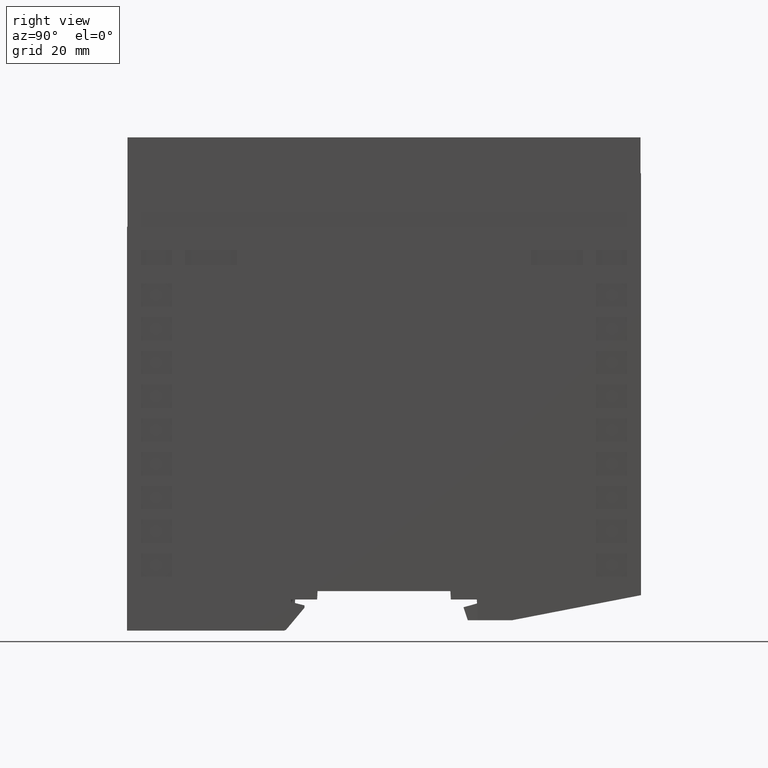
[diagram: clean part render]
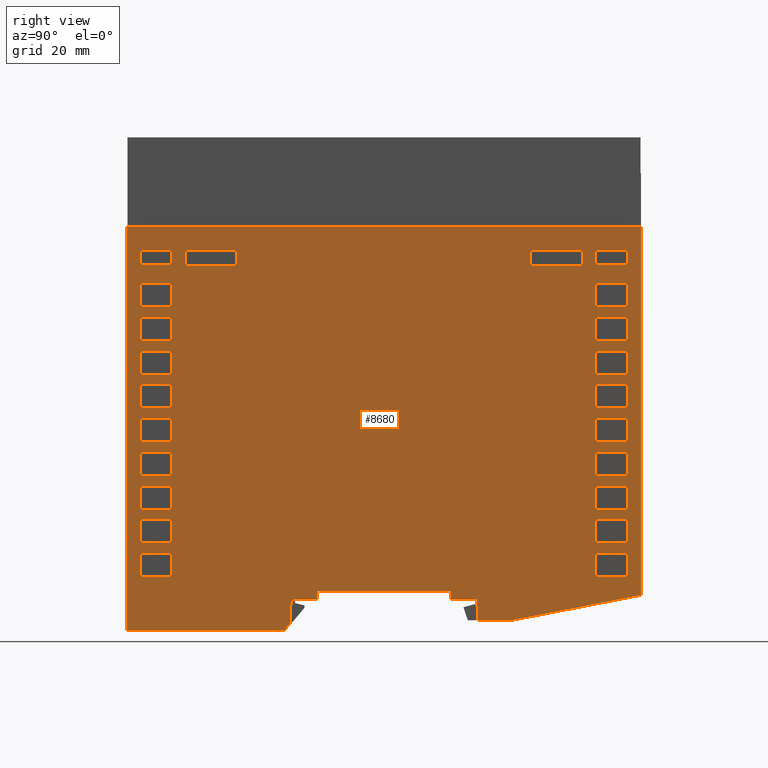
[diagram: same view with one face highlighted and labeled with its STEP entity id]
A machine part, right view. The second image highlights one B-rep face of the part: STEP entity #8680.
In plain terms, the highlighted planar face has unit normal (1, 0, -0).
Its self-contained STEP definition (entity closure, byte-faithful):
#10=CARTESIAN_POINT('',(-16.,36.7,0.));
#20=DIRECTION('',(-1.,0.,0.));
#30=DIRECTION('',(0.,0.,1.));
#40=AXIS2_PLACEMENT_3D('',#10,#20,#30);
#50=PLANE('',#40);
#60=CARTESIAN_POINT('',(-16.,71.8,49.5095866831055));
#70=DIRECTION('',(0.,-1.,0.));
#80=VECTOR('',#70,1.);
#90=LINE('',#60,#80);
#100=CARTESIAN_POINT('',(-16.,71.8,49.5095866831055));
#110=VERTEX_POINT('',#100);
#120=CARTESIAN_POINT('',(-16.,0.822495129039766,49.5095866831055));
#130=VERTEX_POINT('',#120);
#140=EDGE_CURVE('',#110,#130,#90,.T.);
#150=ORIENTED_EDGE('',*,*,#140,.F.);
#160=CARTESIAN_POINT('',(-16.,-8.80119363570036,0.));
#170=DIRECTION('',(0.,0.190808995376495,0.981627183447674));
#180=VECTOR('',#170,1.);
#190=LINE('',#160,#180);
#200=CARTESIAN_POINT('',(-16.,-4.,24.7));
#210=VERTEX_POINT('',#200);
#220=EDGE_CURVE('',#210,#130,#190,.T.);
#230=ORIENTED_EDGE('',*,*,#220,.T.);
#240=CARTESIAN_POINT('',(-16.,-4.,18.28327647733));
#250=DIRECTION('',(0.,0.,1.));
#260=VECTOR('',#250,1.);
#270=LINE('',#240,#260);
#280=CARTESIAN_POINT('',(-16.,-4.,18.0934835639879));
#290=VERTEX_POINT('',#280);
#300=EDGE_CURVE('',#290,#210,#270,.T.);
#310=ORIENTED_EDGE('',*,*,#300,.T.);
#320=CARTESIAN_POINT('',(-16.,-3.81046719125,18.08355057038));
#330=DIRECTION('',(0.,0.998629534754574,-0.0523359562429386));
#340=VECTOR('',#330,1.);
#350=LINE('',#320,#340);
#360=CARTESIAN_POINT('',(-16.,0.,17.8838524468557));
#370=VERTEX_POINT('',#360);
#380=EDGE_CURVE('',#290,#370,#350,.T.);
#390=ORIENTED_EDGE('',*,*,#380,.F.);
#400=CARTESIAN_POINT('',(-16.,0.,17.74150776185));
#410=DIRECTION('',(0.,0.,-1.));
#420=VECTOR('',#410,1.);
#430=LINE('',#400,#420);
#440=CARTESIAN_POINT('',(-16.,0.,12.8838524468493));
#450=VERTEX_POINT('',#440);
#460=EDGE_CURVE('',#370,#450,#430,.T.);
#470=ORIENTED_EDGE('',*,*,#460,.F.);
#480=CARTESIAN_POINT('',(-16.,1.03140157375,12.82979898082));
#490=DIRECTION('',(0.,-0.998629534754574,0.0523359562429387));
#500=VECTOR('',#490,1.);
#510=LINE('',#480,#500);
#520=CARTESIAN_POINT('',(-16.,1.59999999999999,12.7999999999964));
#530=VERTEX_POINT('',#520);
#540=EDGE_CURVE('',#530,#450,#510,.T.);
#550=ORIENTED_EDGE('',*,*,#540,.T.);
#560=CARTESIAN_POINT('',(-16.,1.59999999999999,-12.23062125997));
#570=DIRECTION('',(0.,0.,1.));
#580=VECTOR('',#570,1.);
#590=LINE('',#560,#580);
#600=CARTESIAN_POINT('',(-16.,1.59999999999999,-12.790413316891));
#610=VERTEX_POINT('',#600);
#620=EDGE_CURVE('',#610,#530,#590,.T.);
#630=ORIENTED_EDGE('',*,*,#620,.T.);
#640=CARTESIAN_POINT('',(-16.,71.8,-9.11138721122183));
#650=DIRECTION('',(0.,0.998629534754574,0.0523359562429386));
#660=VECTOR('',#650,1.);
#670=LINE('',#640,#660);
#680=CARTESIAN_POINT('',(-16.,0.,-12.8742657637438));
#690=VERTEX_POINT('',#680);
#700=EDGE_CURVE('',#690,#610,#670,.T.);
#710=ORIENTED_EDGE('',*,*,#700,.T.);
#720=CARTESIAN_POINT('',(-16.,0.,0.00958668310545363));
#730=DIRECTION('',(0.,0.,1.));
#740=VECTOR('',#730,1.);
#750=LINE('',#720,#740);
#760=CARTESIAN_POINT('',(-16.,0.,-17.8742657637459));
#770=VERTEX_POINT('',#760);
#780=EDGE_CURVE('',#770,#690,#750,.T.);
#790=ORIENTED_EDGE('',*,*,#780,.T.);
#800=CARTESIAN_POINT('',(-16.,71.8,-14.1113872112239));
#810=DIRECTION('',(0.,0.998629534754574,0.0523359562429386));
#820=VECTOR('',#810,1.);
#830=LINE('',#800,#820);
#840=CARTESIAN_POINT('',(-16.,-4.72885425519563,-18.1220945138138));
#850=VERTEX_POINT('',#840);
#860=EDGE_CURVE('',#850,#770,#830,.T.);
#870=ORIENTED_EDGE('',*,*,#860,.T.);
#880=CARTESIAN_POINT('',(-16.,71.8,46.0932388661349));
#890=DIRECTION('',(0.,-0.766044443119007,-0.642787609686505));
#900=VECTOR('',#890,1.);
#910=LINE('',#880,#900);
#920=CARTESIAN_POINT('',(-16.,-5.99999999999999,-19.1887124394516));
#930=VERTEX_POINT('',#920);
#940=EDGE_CURVE('',#850,#930,#910,.T.);
#950=ORIENTED_EDGE('',*,*,#940,.F.);
#960=CARTESIAN_POINT('',(-16.,-6.,0.));
#970=DIRECTION('',(0.,0.,-1.));
#980=VECTOR('',#970,1.);
#990=LINE('',#960,#980);
#1000=CARTESIAN_POINT('',(-16.,-6.,-49.4904133168945));
#1010=VERTEX_POINT('',#1000);
#1020=EDGE_CURVE('',#930,#1010,#990,.T.);
#1030=ORIENTED_EDGE('',*,*,#1020,.F.);
#1040=CARTESIAN_POINT('',(-16.,71.8,-49.4904133168945));
#1050=DIRECTION('',(0.,1.,0.));
#1060=VECTOR('',#1050,1.);
#1070=LINE('',#1040,#1060);
#1080=CARTESIAN_POINT('',(-16.,71.8,-49.4904133168945));
#1090=VERTEX_POINT('',#1080);
#1100=EDGE_CURVE('',#1010,#1090,#1070,.T.);
#1110=ORIENTED_EDGE('',*,*,#1100,.F.);
#1120=CARTESIAN_POINT('',(-16.,71.8,0.));
#1130=DIRECTION('',(0.,1.66533453693773E-16,1.));
#1140=VECTOR('',#1130,1.);
#1150=LINE('',#1120,#1140);
#1160=EDGE_CURVE('',#1090,#110,#1150,.T.);
#1170=ORIENTED_EDGE('',*,*,#1160,.F.);
#1180=EDGE_LOOP('',(#1170,#1110,#1030,#950,#870,#790,#710,#630,#550,#470
,#390,#310,#230,#150));
#1190=FACE_OUTER_BOUND('',#1180,.T.);
#1200=CARTESIAN_POINT('',(-16.,71.8,40.80942860776));
#1210=DIRECTION('',(0.,-1.,0.));
#1220=VECTOR('',#1210,1.);
#1230=LINE('',#1200,#1220);
#1240=CARTESIAN_POINT('',(-16.,15.35,40.80942860776));
#1250=VERTEX_POINT('',#1240);
#1260=CARTESIAN_POINT('',(-16.,10.85,40.80942860776));
#1270=VERTEX_POINT('',#1260);
#1280=EDGE_CURVE('',#1250,#1270,#1230,.T.);
#1290=ORIENTED_EDGE('',*,*,#1280,.F.);
#1300=CARTESIAN_POINT('',(-16.,10.85,0.));
#1310=DIRECTION('',(0.,0.,-1.));
#1320=VECTOR('',#1310,1.);
#1330=LINE('',#1300,#1320);
#1340=CARTESIAN_POINT('',(-16.,10.85,46.99057139224));
#1350=VERTEX_POINT('',#1340);
#1360=EDGE_CURVE('',#1350,#1270,#1330,.T.);
#1370=ORIENTED_EDGE('',*,*,#1360,.T.);
#1380=CARTESIAN_POINT('',(-16.,71.8,46.99057139224));
#1390=DIRECTION('',(0.,1.,0.));
#1400=VECTOR('',#1390,1.);
#1410=LINE('',#1380,#1400);
#1420=CARTESIAN_POINT('',(-16.,15.35,46.99057139224));
#1430=VERTEX_POINT('',#1420);
#1440=EDGE_CURVE('',#1350,#1430,#1410,.T.);
#1450=ORIENTED_EDGE('',*,*,#1440,.F.);
#1460=CARTESIAN_POINT('',(-16.,15.35,0.));
#1470=DIRECTION('',(0.,0.,1.));
#1480=VECTOR('',#1470,1.);
#1490=LINE('',#1460,#1480);
#1500=EDGE_CURVE('',#1250,#1430,#1490,.T.);
#1510=ORIENTED_EDGE('',*,*,#1500,.T.);
#1520=EDGE_LOOP('',(#1510,#1450,#1370,#1290));
#1530=FACE_BOUND('',#1520,.T.);
#1540=CARTESIAN_POINT('',(-16.,64.387782385093,0.));
#1550=DIRECTION('',(0.,0.,-1.));
#1560=VECTOR('',#1550,1.);
#1570=LINE('',#1540,#1560);
#1580=CARTESIAN_POINT('',(-16.,64.387782385093,-28.28778238509));
#1590=VERTEX_POINT('',#1580);
#1600=CARTESIAN_POINT('',(-16.,64.387782385093,-38.31221761491));
#1610=VERTEX_POINT('',#1600);
#1620=EDGE_CURVE('',#1590,#1610,#1570,.T.);
#1630=ORIENTED_EDGE('',*,*,#1620,.T.);
#1640=CARTESIAN_POINT('',(-16.,71.8,-28.28778238509));
#1650=DIRECTION('',(0.,-1.,0.));
#1660=VECTOR('',#1650,1.);
#1670=LINE('',#1640,#1660);
#1680=CARTESIAN_POINT('',(-16.,67.312217614907,-28.28778238509));
#1690=VERTEX_POINT('',#1680);
#1700=EDGE_CURVE('',#1690,#1590,#1670,.T.);
#1710=ORIENTED_EDGE('',*,*,#1700,.T.);
#1720=CARTESIAN_POINT('',(-16.,67.312217614907,0.));
#1730=DIRECTION('',(0.,0.,1.));
#1740=VECTOR('',#1730,1.);
#1750=LINE('',#1720,#1740);
#1760=CARTESIAN_POINT('',(-16.,67.312217614907,-38.31221761491));
#1770=VERTEX_POINT('',#1760);
#1780=EDGE_CURVE('',#1770,#1690,#1750,.T.);
#1790=ORIENTED_EDGE('',*,*,#1780,.T.);
#1800=CARTESIAN_POINT('',(-16.,71.8,-38.31221761491));
#1810=DIRECTION('',(0.,1.,0.));
#1820=VECTOR('',#1810,1.);
#1830=LINE('',#1800,#1820);
#1840=EDGE_CURVE('',#1610,#1770,#1830,.T.);
#1850=ORIENTED_EDGE('',*,*,#1840,.T.);
#1860=EDGE_LOOP('',(#1850,#1790,#1710,#1630));
#1870=FACE_BOUND('',#1860,.T.);
#1880=CARTESIAN_POINT('',(-16.,30.35942860776,0.));
#1890=DIRECTION('',(0.,0.,1.));
#1900=VECTOR('',#1890,1.);
#1910=LINE('',#1880,#1900);
#1920=CARTESIAN_POINT('',(-16.,30.35942860776,-46.99057139224));
#1930=VERTEX_POINT('',#1920);
#1940=CARTESIAN_POINT('',(-16.,30.35942860776,-40.80942860776));
#1950=VERTEX_POINT('',#1940);
#1960=EDGE_CURVE('',#1930,#1950,#1910,.T.);
#1970=ORIENTED_EDGE('',*,*,#1960,.F.);
#1980=CARTESIAN_POINT('',(-16.,71.8,-40.80942860776));
#1990=DIRECTION('',(0.,1.,0.));
#2000=VECTOR('',#1990,1.);
#2010=LINE('',#1980,#2000);
#2020=CARTESIAN_POINT('',(-16.,34.84057139224,-40.80942860776));
#2030=VERTEX_POINT('',#2020);
#2040=EDGE_CURVE('',#1950,#2030,#2010,.T.);
#2050=ORIENTED_EDGE('',*,*,#2040,.F.);
#2060=CARTESIAN_POINT('',(-16.,34.84057139224,0.));
#2070=DIRECTION('',(0.,0.,-1.));
#2080=VECTOR('',#2070,1.);
#2090=LINE('',#2060,#2080);
#2100=CARTESIAN_POINT('',(-16.,34.84057139224,-46.99057139224));
#2110=VERTEX_POINT('',#2100);
#2120=EDGE_CURVE('',#2030,#2110,#2090,.T.);
#2130=ORIENTED_EDGE('',*,*,#2120,.F.);
#2140=CARTESIAN_POINT('',(-16.,71.8,-46.99057139224));
#2150=DIRECTION('',(0.,-1.,0.));
#2160=VECTOR('',#2150,1.);
#2170=LINE('',#2140,#2160);
#2180=EDGE_CURVE('',#2110,#1930,#2170,.T.);
#2190=ORIENTED_EDGE('',*,*,#2180,.F.);
#2200=EDGE_LOOP('',(#2190,#2130,#2050,#1970));
#2210=FACE_BOUND('',#2200,.T.);
#2220=CARTESIAN_POINT('',(-16.,60.84057139224,0.));
#2230=DIRECTION('',(0.,0.,-1.));
#2240=VECTOR('',#2230,1.);
#2250=LINE('',#2220,#2240);
#2260=CARTESIAN_POINT('',(-16.,60.84057139224,-40.80942860776));
#2270=VERTEX_POINT('',#2260);
#2280=CARTESIAN_POINT('',(-16.,60.84057139224,-46.99057139224));
#2290=VERTEX_POINT('',#2280);
#2300=EDGE_CURVE('',#2270,#2290,#2250,.T.);
#2310=ORIENTED_EDGE('',*,*,#2300,.F.);
#2320=CARTESIAN_POINT('',(-16.,71.8,-46.99057139224));
#2330=DIRECTION('',(0.,-1.,0.));
#2340=VECTOR('',#2330,1.);
#2350=LINE('',#2320,#2340);
#2360=CARTESIAN_POINT('',(-16.,56.35942860776,-46.99057139224));
#2370=VERTEX_POINT('',#2360);
#2380=EDGE_CURVE('',#2290,#2370,#2350,.T.);
#2390=ORIENTED_EDGE('',*,*,#2380,.F.);
#2400=CARTESIAN_POINT('',(-16.,56.35942860776,0.));
#2410=DIRECTION('',(0.,0.,1.));
#2420=VECTOR('',#2410,1.);
#2430=LINE('',#2400,#2420);
#2440=CARTESIAN_POINT('',(-16.,56.35942860776,-40.80942860776));
#2450=VERTEX_POINT('',#2440);
#2460=EDGE_CURVE('',#2370,#2450,#2430,.T.);
#2470=ORIENTED_EDGE('',*,*,#2460,.F.);
#2480=CARTESIAN_POINT('',(-16.,71.8,-40.80942860776));
#2490=DIRECTION('',(0.,1.,0.));
#2500=VECTOR('',#2490,1.);
#2510=LINE('',#2480,#2500);
#2520=EDGE_CURVE('',#2450,#2270,#2510,.T.);
#2530=ORIENTED_EDGE('',*,*,#2520,.F.);
#2540=EDGE_LOOP('',(#2530,#2470,#2390,#2310));
#2550=FACE_BOUND('',#2540,.T.);
#2560=CARTESIAN_POINT('',(-16.,71.8,-40.80942860776));
#2570=DIRECTION('',(0.,1.,0.));
#2580=VECTOR('',#2570,1.);
#2590=LINE('',#2560,#2580);
#2600=CARTESIAN_POINT('',(-16.,17.35942860776,-40.80942860776));
#2610=VERTEX_POINT('',#2600);
#2620=CARTESIAN_POINT('',(-16.,21.84057139224,-40.80942860776));
#2630=VERTEX_POINT('',#2620);
#2640=EDGE_CURVE('',#2610,#2630,#2590,.T.);
#2650=ORIENTED_EDGE('',*,*,#2640,.F.);
#2660=CARTESIAN_POINT('',(-16.,21.84057139224,0.));
#2670=DIRECTION('',(0.,0.,-1.));
#2680=VECTOR('',#2670,1.);
#2690=LINE('',#2660,#2680);
#2700=CARTESIAN_POINT('',(-16.,21.84057139224,-46.99057139224));
#2710=VERTEX_POINT('',#2700);
#2720=EDGE_CURVE('',#2630,#2710,#2690,.T.);
#2730=ORIENTED_EDGE('',*,*,#2720,.F.);
#2740=CARTESIAN_POINT('',(-16.,71.8,-46.99057139224));
#2750=DIRECTION('',(0.,-1.,0.));
#2760=VECTOR('',#2750,1.);
#2770=LINE('',#2740,#2760);
#2780=CARTESIAN_POINT('',(-16.,17.35942860776,-46.99057139224));
#2790=VERTEX_POINT('',#2780);
#2800=EDGE_CURVE('',#2710,#2790,#2770,.T.);
#2810=ORIENTED_EDGE('',*,*,#2800,.F.);
#2820=CARTESIAN_POINT('',(-16.,17.35942860776,0.));
#2830=DIRECTION('',(0.,0.,1.));
#2840=VECTOR('',#2830,1.);
#2850=LINE('',#2820,#2840);
#2860=EDGE_CURVE('',#2790,#2610,#2850,.T.);
#2870=ORIENTED_EDGE('',*,*,#2860,.F.);
#2880=EDGE_LOOP('',(#2870,#2810,#2730,#2650));
#2890=FACE_BOUND('',#2880,.T.);
#2900=CARTESIAN_POINT('',(-16.,47.84057139224,0.));
#2910=DIRECTION('',(0.,0.,-1.));
#2920=VECTOR('',#2910,1.);
#2930=LINE('',#2900,#2920);
#2940=CARTESIAN_POINT('',(-16.,47.84057139224,-40.80942860776));
#2950=VERTEX_POINT('',#2940);
#2960=CARTESIAN_POINT('',(-16.,47.84057139224,-46.99057139224));
#2970=VERTEX_POINT('',#2960);
#2980=EDGE_CURVE('',#2950,#2970,#2930,.T.);
#2990=ORIENTED_EDGE('',*,*,#2980,.F.);
#3000=CARTESIAN_POINT('',(-16.,71.8,-46.99057139224));
#3010=DIRECTION('',(0.,-1.,0.));
#3020=VECTOR('',#3010,1.);
#3030=LINE('',#3000,#3020);
#3040=CARTESIAN_POINT('',(-16.,43.35942860776,-46.99057139224));
#3050=VERTEX_POINT('',#3040);
#3060=EDGE_CURVE('',#2970,#3050,#3030,.T.);
#3070=ORIENTED_EDGE('',*,*,#3060,.F.);
#3080=CARTESIAN_POINT('',(-16.,43.35942860776,0.));
#3090=DIRECTION('',(0.,0.,1.));
#3100=VECTOR('',#3090,1.);
#3110=LINE('',#3080,#3100);
#3120=CARTESIAN_POINT('',(-16.,43.35942860776,-40.80942860776));
#3130=VERTEX_POINT('',#3120);
#3140=EDGE_CURVE('',#3050,#3130,#3110,.T.);
#3150=ORIENTED_EDGE('',*,*,#3140,.F.);
#3160=CARTESIAN_POINT('',(-16.,71.8,-40.80942860776));
#3170=DIRECTION('',(0.,1.,0.));
#3180=VECTOR('',#3170,1.);
#3190=LINE('',#3160,#3180);
#3200=EDGE_CURVE('',#3130,#2950,#3190,.T.);
#3210=ORIENTED_EDGE('',*,*,#3200,.F.);
#3220=EDGE_LOOP('',(#3210,#3150,#3070,#2990));
#3230=FACE_BOUND('',#3220,.T.);
#3240=CARTESIAN_POINT('',(-16.,71.8,-40.80942860776));
#3250=DIRECTION('',(0.,1.,0.));
#3260=VECTOR('',#3250,1.);
#3270=LINE('',#3240,#3260);
#3280=CARTESIAN_POINT('',(-16.,23.85942860776,-40.80942860776));
#3290=VERTEX_POINT('',#3280);
#3300=CARTESIAN_POINT('',(-16.,28.34057139224,-40.80942860776));
#3310=VERTEX_POINT('',#3300);
#3320=EDGE_CURVE('',#3290,#3310,#3270,.T.);
#3330=ORIENTED_EDGE('',*,*,#3320,.F.);
#3340=CARTESIAN_POINT('',(-16.,28.34057139224,0.));
#3350=DIRECTION('',(0.,0.,-1.));
#3360=VECTOR('',#3350,1.);
#3370=LINE('',#3340,#3360);
#3380=CARTESIAN_POINT('',(-16.,28.34057139224,-46.99057139224));
#3390=VERTEX_POINT('',#3380);
#3400=EDGE_CURVE('',#3310,#3390,#3370,.T.);
#3410=ORIENTED_EDGE('',*,*,#3400,.F.);
#3420=CARTESIAN_POINT('',(-16.,71.8,-46.99057139224));
#3430=DIRECTION('',(0.,-1.,0.));
#3440=VECTOR('',#3430,1.);
#3450=LINE('',#3420,#3440);
#3460=CARTESIAN_POINT('',(-16.,23.85942860776,-46.99057139224));
#3470=VERTEX_POINT('',#3460);
#3480=EDGE_CURVE('',#3390,#3470,#3450,.T.);
#3490=ORIENTED_EDGE('',*,*,#3480,.F.);
#3500=CARTESIAN_POINT('',(-16.,23.85942860776,0.));
#3510=DIRECTION('',(0.,0.,1.));
#3520=VECTOR('',#3510,1.);
#3530=LINE('',#3500,#3520);
#3540=EDGE_CURVE('',#3470,#3290,#3530,.T.);
#3550=ORIENTED_EDGE('',*,*,#3540,.F.);
#3560=EDGE_LOOP('',(#3550,#3490,#3410,#3330));
#3570=FACE_BOUND('',#3560,.T.);
#3580=CARTESIAN_POINT('',(-16.,10.85,0.));
#3590=DIRECTION('',(0.,0.,-1.));
#3600=VECTOR('',#3590,1.);
#3610=LINE('',#3580,#3600);
#3620=CARTESIAN_POINT('',(-16.,10.85,-40.80942860776));
#3630=VERTEX_POINT('',#3620);
#3640=CARTESIAN_POINT('',(-16.,10.85,-46.99057139224));
#3650=VERTEX_POINT('',#3640);
#3660=EDGE_CURVE('',#3630,#3650,#3610,.T.);
#3670=ORIENTED_EDGE('',*,*,#3660,.T.);
#3680=CARTESIAN_POINT('',(-16.,71.8,-40.80942860776));
#3690=DIRECTION('',(0.,1.,0.));
#3700=VECTOR('',#3690,1.);
#3710=LINE('',#3680,#3700);
#3720=CARTESIAN_POINT('',(-16.,15.35,-40.80942860776));
#3730=VERTEX_POINT('',#3720);
#3740=EDGE_CURVE('',#3630,#3730,#3710,.T.);
#3750=ORIENTED_EDGE('',*,*,#3740,.F.);
#3760=CARTESIAN_POINT('',(-16.,15.35,0.));
#3770=DIRECTION('',(0.,0.,1.));
#3780=VECTOR('',#3770,1.);
#3790=LINE('',#3760,#3780);
#3800=CARTESIAN_POINT('',(-16.,15.35,-46.99057139224));
#3810=VERTEX_POINT('',#3800);
#3820=EDGE_CURVE('',#3810,#3730,#3790,.T.);
#3830=ORIENTED_EDGE('',*,*,#3820,.T.);
#3840=CARTESIAN_POINT('',(-16.,71.8,-46.99057139224));
#3850=DIRECTION('',(0.,-1.,0.));
#3860=VECTOR('',#3850,1.);
#3870=LINE('',#3840,#3860);
#3880=EDGE_CURVE('',#3810,#3650,#3870,.T.);
#3890=ORIENTED_EDGE('',*,*,#3880,.F.);
#3900=EDGE_LOOP('',(#3890,#3830,#3750,#3670));
#3910=FACE_BOUND('',#3900,.T.);
#3920=CARTESIAN_POINT('',(-16.,36.85942860776,0.));
#3930=DIRECTION('',(0.,0.,1.));
#3940=VECTOR('',#3930,1.);
#3950=LINE('',#3920,#3940);
#3960=CARTESIAN_POINT('',(-16.,36.85942860776,-46.99057139224));
#3970=VERTEX_POINT('',#3960);
#3980=CARTESIAN_POINT('',(-16.,36.85942860776,-40.80942860776));
#3990=VERTEX_POINT('',#3980);
#4000=EDGE_CURVE('',#3970,#3990,#3950,.T.);
#4010=ORIENTED_EDGE('',*,*,#4000,.F.);
#4020=CARTESIAN_POINT('',(-16.,71.8,-40.80942860776));
#4030=DIRECTION('',(0.,1.,0.));
#4040=VECTOR('',#4030,1.);
#4050=LINE('',#4020,#4040);
#4060=CARTESIAN_POINT('',(-16.,41.34057139224,-40.80942860776));
#4070=VERTEX_POINT('',#4060);
#4080=EDGE_CURVE('',#3990,#4070,#4050,.T.);
#4090=ORIENTED_EDGE('',*,*,#4080,.F.);
#4100=CARTESIAN_POINT('',(-16.,41.34057139224,0.));
#4110=DIRECTION('',(0.,0.,-1.));
#4120=VECTOR('',#4110,1.);
#4130=LINE('',#4100,#4120);
#4140=CARTESIAN_POINT('',(-16.,41.34057139224,-46.99057139224));
#4150=VERTEX_POINT('',#4140);
#4160=EDGE_CURVE('',#4070,#4150,#4130,.T.);
#4170=ORIENTED_EDGE('',*,*,#4160,.F.);
#4180=CARTESIAN_POINT('',(-16.,71.8,-46.99057139224));
#4190=DIRECTION('',(0.,-1.,0.));
#4200=VECTOR('',#4190,1.);
#4210=LINE('',#4180,#4200);
#4220=EDGE_CURVE('',#4150,#3970,#4210,.T.);
#4230=ORIENTED_EDGE('',*,*,#4220,.F.);
#4240=EDGE_LOOP('',(#4230,#4170,#4090,#4010));
#4250=FACE_BOUND('',#4240,.T.);
#4260=CARTESIAN_POINT('',(-16.,49.85942860776,0.));
#4270=DIRECTION('',(0.,0.,1.));
#4280=VECTOR('',#4270,1.);
#4290=LINE('',#4260,#4280);
#4300=CARTESIAN_POINT('',(-16.,49.85942860776,-46.99057139224));
#4310=VERTEX_POINT('',#4300);
#4320=CARTESIAN_POINT('',(-16.,49.85942860776,-40.80942860776));
#4330=VERTEX_POINT('',#4320);
#4340=EDGE_CURVE('',#4310,#4330,#4290,.T.);
#4350=ORIENTED_EDGE('',*,*,#4340,.F.);
#4360=CARTESIAN_POINT('',(-16.,71.8,-40.80942860776));
#4370=DIRECTION('',(0.,1.,0.));
#4380=VECTOR('',#4370,1.);
#4390=LINE('',#4360,#4380);
#4400=CARTESIAN_POINT('',(-16.,54.34057139224,-40.80942860776));
#4410=VERTEX_POINT('',#4400);
#4420=EDGE_CURVE('',#4330,#4410,#4390,.T.);
#4430=ORIENTED_EDGE('',*,*,#4420,.F.);
#4440=CARTESIAN_POINT('',(-16.,54.34057139224,0.));
#4450=DIRECTION('',(0.,0.,-1.));
#4460=VECTOR('',#4450,1.);
#4470=LINE('',#4440,#4460);
#4480=CARTESIAN_POINT('',(-16.,54.34057139224,-46.99057139224));
#4490=VERTEX_POINT('',#4480);
#4500=EDGE_CURVE('',#4410,#4490,#4470,.T.);
#4510=ORIENTED_EDGE('',*,*,#4500,.F.);
#4520=CARTESIAN_POINT('',(-16.,71.8,-46.99057139224));
#4530=DIRECTION('',(0.,-1.,0.));
#4540=VECTOR('',#4530,1.);
#4550=LINE('',#4520,#4540);
#4560=EDGE_CURVE('',#4490,#4310,#4550,.T.);
#4570=ORIENTED_EDGE('',*,*,#4560,.F.);
#4580=EDGE_LOOP('',(#4570,#4510,#4430,#4350));
#4590=FACE_BOUND('',#4580,.T.);
#4600=CARTESIAN_POINT('',(-16.,4.35942860775999,0.));
#4610=DIRECTION('',(0.,0.,1.));
#4620=VECTOR('',#4610,1.);
#4630=LINE('',#4600,#4620);
#4640=CARTESIAN_POINT('',(-16.,4.35942860775999,-46.99057139224));
#4650=VERTEX_POINT('',#4640);
#4660=CARTESIAN_POINT('',(-16.,4.35942860775999,-40.80942860776));
#4670=VERTEX_POINT('',#4660);
#4680=EDGE_CURVE('',#4650,#4670,#4630,.T.);
#4690=ORIENTED_EDGE('',*,*,#4680,.F.);
#4700=CARTESIAN_POINT('',(-16.,71.8,-40.80942860776));
#4710=DIRECTION('',(0.,1.,0.));
#4720=VECTOR('',#4710,1.);
#4730=LINE('',#4700,#4720);
#4740=CARTESIAN_POINT('',(-16.,8.84057139223999,-40.80942860776));
#4750=VERTEX_POINT('',#4740);
#4760=EDGE_CURVE('',#4670,#4750,#4730,.T.);
#4770=ORIENTED_EDGE('',*,*,#4760,.F.);
#4780=CARTESIAN_POINT('',(-16.,8.84057139223999,0.));
#4790=DIRECTION('',(0.,0.,-1.));
#4800=VECTOR('',#4790,1.);
#4810=LINE('',#4780,#4800);
#4820=CARTESIAN_POINT('',(-16.,8.84057139223999,-46.99057139224));
#4830=VERTEX_POINT('',#4820);
#4840=EDGE_CURVE('',#4750,#4830,#4810,.T.);
#4850=ORIENTED_EDGE('',*,*,#4840,.F.);
#4860=CARTESIAN_POINT('',(-16.,71.8,-46.99057139224));
#4870=DIRECTION('',(0.,-1.,0.));
#4880=VECTOR('',#4870,1.);
#4890=LINE('',#4860,#4880);
#4900=EDGE_CURVE('',#4830,#4650,#4890,.T.);
#4910=ORIENTED_EDGE('',*,*,#4900,.F.);
#4920=EDGE_LOOP('',(#4910,#4850,#4770,#4690));
#4930=FACE_BOUND('',#4920,.T.);
#4940=CARTESIAN_POINT('',(-16.,71.8,-40.80942860776));
#4950=DIRECTION('',(0.,1.,0.));
#4960=VECTOR('',#4950,1.);
#4970=LINE('',#4940,#4960);
#4980=CARTESIAN_POINT('',(-16.,64.409428607763,-40.80942860776));
#4990=VERTEX_POINT('',#4980);
#5000=CARTESIAN_POINT('',(-16.,67.290571392237,-40.80942860776));
#5010=VERTEX_POINT('',#5000);
#5020=EDGE_CURVE('',#4990,#5010,#4970,.T.);
#5030=ORIENTED_EDGE('',*,*,#5020,.F.);
#5040=CARTESIAN_POINT('',(-16.,67.290571392237,0.));
#5050=DIRECTION('',(0.,0.,-1.));
#5060=VECTOR('',#5050,1.);
#5070=LINE('',#5040,#5060);
#5080=CARTESIAN_POINT('',(-16.,67.290571392237,-46.99057139224));
#5090=VERTEX_POINT('',#5080);
#5100=EDGE_CURVE('',#5010,#5090,#5070,.T.);
#5110=ORIENTED_EDGE('',*,*,#5100,.F.);
#5120=CARTESIAN_POINT('',(-16.,71.8,-46.99057139224));
#5130=DIRECTION('',(0.,-1.,0.));
#5140=VECTOR('',#5130,1.);
#5150=LINE('',#5120,#5140);
#5160=CARTESIAN_POINT('',(-16.,64.409428607763,-46.99057139224));
#5170=VERTEX_POINT('',#5160);
#5180=EDGE_CURVE('',#5090,#5170,#5150,.T.);
#5190=ORIENTED_EDGE('',*,*,#5180,.F.);
#5200=CARTESIAN_POINT('',(-16.,64.409428607763,0.));
#5210=DIRECTION('',(0.,0.,1.));
#5220=VECTOR('',#5210,1.);
#5230=LINE('',#5200,#5220);
#5240=EDGE_CURVE('',#5170,#4990,#5230,.T.);
#5250=ORIENTED_EDGE('',*,*,#5240,.F.);
#5260=EDGE_LOOP('',(#5250,#5190,#5110,#5030));
#5270=FACE_BOUND('',#5260,.T.);
#5280=CARTESIAN_POINT('',(-16.,47.84057139224,0.));
#5290=DIRECTION('',(0.,0.,-1.));
#5300=VECTOR('',#5290,1.);
#5310=LINE('',#5280,#5300);
#5320=CARTESIAN_POINT('',(-16.,47.84057139224,46.99057139224));
#5330=VERTEX_POINT('',#5320);
#5340=CARTESIAN_POINT('',(-16.,47.84057139224,40.80942860776));
#5350=VERTEX_POINT('',#5340);
#5360=EDGE_CURVE('',#5330,#5350,#5310,.T.);
#5370=ORIENTED_EDGE('',*,*,#5360,.F.);
#5380=CARTESIAN_POINT('',(-16.,71.8,40.80942860776));
#5390=DIRECTION('',(0.,-1.,0.));
#5400=VECTOR('',#5390,1.);
#5410=LINE('',#5380,#5400);
#5420=CARTESIAN_POINT('',(-16.,43.35942860776,40.80942860776));
#5430=VERTEX_POINT('',#5420);
#5440=EDGE_CURVE('',#5350,#5430,#5410,.T.);
#5450=ORIENTED_EDGE('',*,*,#5440,.F.);
#5460=CARTESIAN_POINT('',(-16.,43.35942860776,0.));
#5470=DIRECTION('',(0.,0.,1.));
#5480=VECTOR('',#5470,1.);
#5490=LINE('',#5460,#5480);
#5500=CARTESIAN_POINT('',(-16.,43.35942860776,46.99057139224));
#5510=VERTEX_POINT('',#5500);
#5520=EDGE_CURVE('',#5430,#5510,#5490,.T.);
#5530=ORIENTED_EDGE('',*,*,#5520,.F.);
#5540=CARTESIAN_POINT('',(-16.,71.8,46.99057139224));
#5550=DIRECTION('',(0.,1.,0.));
#5560=VECTOR('',#5550,1.);
#5570=LINE('',#5540,#5560);
#5580=EDGE_CURVE('',#5510,#5330,#5570,.T.);
#5590=ORIENTED_EDGE('',*,*,#5580,.F.);
#5600=EDGE_LOOP('',(#5590,#5530,#5450,#5370));
#5610=FACE_BOUND('',#5600,.T.);
#5620=CARTESIAN_POINT('',(-16.,64.409428607763,0.));
#5630=DIRECTION('',(0.,0.,1.));
#5640=VECTOR('',#5630,1.);
#5650=LINE('',#5620,#5640);
#5660=CARTESIAN_POINT('',(-16.,64.409428607763,40.80942860776));
#5670=VERTEX_POINT('',#5660);
#5680=CARTESIAN_POINT('',(-16.,64.409428607763,46.99057139224));
#5690=VERTEX_POINT('',#5680);
#5700=EDGE_CURVE('',#5670,#5690,#5650,.T.);
#5710=ORIENTED_EDGE('',*,*,#5700,.F.);
#5720=CARTESIAN_POINT('',(-16.,71.8,46.99057139224));
#5730=DIRECTION('',(0.,1.,0.));
#5740=VECTOR('',#5730,1.);
#5750=LINE('',#5720,#5740);
#5760=CARTESIAN_POINT('',(-16.,67.290571392237,46.99057139224));
#5770=VERTEX_POINT('',#5760);
#5780=EDGE_CURVE('',#5690,#5770,#5750,.T.);
#5790=ORIENTED_EDGE('',*,*,#5780,.F.);
#5800=CARTESIAN_POINT('',(-16.,67.290571392237,0.));
#5810=DIRECTION('',(0.,0.,-1.));
#5820=VECTOR('',#5810,1.);
#5830=LINE('',#5800,#5820);
#5840=CARTESIAN_POINT('',(-16.,67.290571392237,40.80942860776));
#5850=VERTEX_POINT('',#5840);
#5860=EDGE_CURVE('',#5770,#5850,#5830,.T.);
#5870=ORIENTED_EDGE('',*,*,#5860,.F.);
#5880=CARTESIAN_POINT('',(-16.,71.8,40.80942860776));
#5890=DIRECTION('',(0.,-1.,0.));
#5900=VECTOR('',#5890,1.);
#5910=LINE('',#5880,#5900);
#5920=EDGE_CURVE('',#5850,#5670,#5910,.T.);
#5930=ORIENTED_EDGE('',*,*,#5920,.F.);
#5940=EDGE_LOOP('',(#5930,#5870,#5790,#5710));
#5950=FACE_BOUND('',#5940,.T.);
#5960=CARTESIAN_POINT('',(-16.,71.8,46.99057139224));
#5970=DIRECTION('',(0.,1.,0.));
#5980=VECTOR('',#5970,1.);
#5990=LINE('',#5960,#5980);
#6000=CARTESIAN_POINT('',(-16.,17.35942860776,46.99057139224));
#6010=VERTEX_POINT('',#6000);
#6020=CARTESIAN_POINT('',(-16.,21.84057139224,46.99057139224));
#6030=VERTEX_POINT('',#6020);
#6040=EDGE_CURVE('',#6010,#6030,#5990,.T.);
#6050=ORIENTED_EDGE('',*,*,#6040,.F.);
#6060=CARTESIAN_POINT('',(-16.,21.84057139224,0.));
#6070=DIRECTION('',(0.,0.,-1.));
#6080=VECTOR('',#6070,1.);
#6090=LINE('',#6060,#6080);
#6100=CARTESIAN_POINT('',(-16.,21.84057139224,40.80942860776));
#6110=VERTEX_POINT('',#6100);
#6120=EDGE_CURVE('',#6030,#6110,#6090,.T.);
#6130=ORIENTED_EDGE('',*,*,#6120,.F.);
#6140=CARTESIAN_POINT('',(-16.,71.8,40.80942860776));
#6150=DIRECTION('',(0.,-1.,0.));
#6160=VECTOR('',#6150,1.);
#6170=LINE('',#6140,#6160);
#6180=CARTESIAN_POINT('',(-16.,17.35942860776,40.80942860776));
#6190=VERTEX_POINT('',#6180);
#6200=EDGE_CURVE('',#6110,#6190,#6170,.T.);
#6210=ORIENTED_EDGE('',*,*,#6200,.F.);
#6220=CARTESIAN_POINT('',(-16.,17.35942860776,0.));
#6230=DIRECTION('',(0.,0.,1.));
#6240=VECTOR('',#6230,1.);
#6250=LINE('',#6220,#6240);
#6260=EDGE_CURVE('',#6190,#6010,#6250,.T.);
#6270=ORIENTED_EDGE('',*,*,#6260,.F.);
#6280=EDGE_LOOP('',(#6270,#6210,#6130,#6050));
#6290=FACE_BOUND('',#6280,.T.);
#6300=CARTESIAN_POINT('',(-16.,36.85942860776,0.));
#6310=DIRECTION('',(0.,0.,1.));
#6320=VECTOR('',#6310,1.);
#6330=LINE('',#6300,#6320);
#6340=CARTESIAN_POINT('',(-16.,36.85942860776,40.80942860776));
#6350=VERTEX_POINT('',#6340);
#6360=CARTESIAN_POINT('',(-16.,36.85942860776,46.99057139224));
#6370=VERTEX_POINT('',#6360);
#6380=EDGE_CURVE('',#6350,#6370,#6330,.T.);
#6390=ORIENTED_EDGE('',*,*,#6380,.F.);
#6400=CARTESIAN_POINT('',(-16.,71.8,46.99057139224));
#6410=DIRECTION('',(0.,1.,0.));
#6420=VECTOR('',#6410,1.);
#6430=LINE('',#6400,#6420);
#6440=CARTESIAN_POINT('',(-16.,41.34057139224,46.99057139224));
#6450=VERTEX_POINT('',#6440);
#6460=EDGE_CURVE('',#6370,#6450,#6430,.T.);
#6470=ORIENTED_EDGE('',*,*,#6460,.F.);
#6480=CARTESIAN_POINT('',(-16.,41.34057139224,0.));
#6490=DIRECTION('',(0.,0.,-1.));
#6500=VECTOR('',#6490,1.);
#6510=LINE('',#6480,#6500);
#6520=CARTESIAN_POINT('',(-16.,41.34057139224,40.80942860776));
#6530=VERTEX_POINT('',#6520);
#6540=EDGE_CURVE('',#6450,#6530,#6510,.T.);
#6550=ORIENTED_EDGE('',*,*,#6540,.F.);
#6560=CARTESIAN_POINT('',(-16.,71.8,40.80942860776));
#6570=DIRECTION('',(0.,-1.,0.));
#6580=VECTOR('',#6570,1.);
#6590=LINE('',#6560,#6580);
#6600=EDGE_CURVE('',#6530,#6350,#6590,.T.);
#6610=ORIENTED_EDGE('',*,*,#6600,.F.);
#6620=EDGE_LOOP('',(#6610,#6550,#6470,#6390));
#6630=FACE_BOUND('',#6620,.T.);
#6640=CARTESIAN_POINT('',(-16.,23.85942860776,0.));
#6650=DIRECTION('',(0.,0.,1.));
#6660=VECTOR('',#6650,1.);
#6670=LINE('',#6640,#6660);
#6680=CARTESIAN_POINT('',(-16.,23.85942860776,40.80942860776));
#6690=VERTEX_POINT('',#6680);
#6700=CARTESIAN_POINT('',(-16.,23.85942860776,46.99057139224));
#6710=VERTEX_POINT('',#6700);
#6720=EDGE_CURVE('',#6690,#6710,#6670,.T.);
#6730=ORIENTED_EDGE('',*,*,#6720,.F.);
#6740=CARTESIAN_POINT('',(-16.,71.8,46.99057139224));
#6750=DIRECTION('',(0.,1.,0.));
#6760=VECTOR('',#6750,1.);
#6770=LINE('',#6740,#6760);
#6780=CARTESIAN_POINT('',(-16.,28.34057139224,46.99057139224));
#6790=VERTEX_POINT('',#6780);
#6800=EDGE_CURVE('',#6710,#6790,#6770,.T.);
#6810=ORIENTED_EDGE('',*,*,#6800,.F.);
#6820=CARTESIAN_POINT('',(-16.,28.34057139224,0.));
#6830=DIRECTION('',(0.,0.,-1.));
#6840=VECTOR('',#6830,1.);
#6850=LINE('',#6820,#6840);
#6860=CARTESIAN_POINT('',(-16.,28.34057139224,40.80942860776));
#6870=VERTEX_POINT('',#6860);
#6880=EDGE_CURVE('',#6790,#6870,#6850,.T.);
#6890=ORIENTED_EDGE('',*,*,#6880,.F.);
#6900=CARTESIAN_POINT('',(-16.,71.8,40.80942860776));
#6910=DIRECTION('',(0.,-1.,0.));
#6920=VECTOR('',#6910,1.);
#6930=LINE('',#6900,#6920);
#6940=EDGE_CURVE('',#6870,#6690,#6930,.T.);
#6950=ORIENTED_EDGE('',*,*,#6940,.F.);
#6960=EDGE_LOOP('',(#6950,#6890,#6810,#6730));
#6970=FACE_BOUND('',#6960,.T.);
#6980=CARTESIAN_POINT('',(-16.,71.8,38.31221761491));
#6990=DIRECTION('',(0.,-1.,0.));
#7000=VECTOR('',#6990,1.);
#7010=LINE('',#6980,#7000);
#7020=CARTESIAN_POINT('',(-16.,67.312217614907,38.31221761491));
#7030=VERTEX_POINT('',#7020);
#7040=CARTESIAN_POINT('',(-16.,64.387782385093,38.31221761491));
#7050=VERTEX_POINT('',#7040);
#7060=EDGE_CURVE('',#7030,#7050,#7010,.T.);
#7070=ORIENTED_EDGE('',*,*,#7060,.T.);
#7080=CARTESIAN_POINT('',(-16.,67.312217614907,0.));
#7090=DIRECTION('',(0.,0.,1.));
#7100=VECTOR('',#7090,1.);
#7110=LINE('',#7080,#7100);
#7120=CARTESIAN_POINT('',(-16.,67.312217614907,28.28778238509));
#7130=VERTEX_POINT('',#7120);
#7140=EDGE_CURVE('',#7130,#7030,#7110,.T.);
#7150=ORIENTED_EDGE('',*,*,#7140,.T.);
#7160=CARTESIAN_POINT('',(-16.,71.8,28.28778238509));
#7170=DIRECTION('',(0.,1.,0.));
#7180=VECTOR('',#7170,1.);
#7190=LINE('',#7160,#7180);
#7200=CARTESIAN_POINT('',(-16.,64.387782385093,28.28778238509));
#7210=VERTEX_POINT('',#7200);
#7220=EDGE_CURVE('',#7210,#7130,#7190,.T.);
#7230=ORIENTED_EDGE('',*,*,#7220,.T.);
#7240=CARTESIAN_POINT('',(-16.,64.387782385093,0.));
#7250=DIRECTION('',(0.,0.,-1.));
#7260=VECTOR('',#7250,1.);
#7270=LINE('',#7240,#7260);
#7280=EDGE_CURVE('',#7050,#7210,#7270,.T.);
#7290=ORIENTED_EDGE('',*,*,#7280,.T.);
#7300=EDGE_LOOP('',(#7290,#7230,#7150,#7070));
#7310=FACE_BOUND('',#7300,.T.);
#7320=CARTESIAN_POINT('',(-16.,8.84057139223999,0.));
#7330=DIRECTION('',(0.,0.,-1.));
#7340=VECTOR('',#7330,1.);
#7350=LINE('',#7320,#7340);
#7360=CARTESIAN_POINT('',(-16.,8.84057139223999,46.99057139224));
#7370=VERTEX_POINT('',#7360);
#7380=CARTESIAN_POINT('',(-16.,8.84057139223999,40.80942860776));
#7390=VERTEX_POINT('',#7380);
#7400=EDGE_CURVE('',#7370,#7390,#7350,.T.);
#7410=ORIENTED_EDGE('',*,*,#7400,.F.);
#7420=CARTESIAN_POINT('',(-16.,71.8,40.80942860776));
#7430=DIRECTION('',(0.,-1.,0.));
#7440=VECTOR('',#7430,1.);
#7450=LINE('',#7420,#7440);
#7460=CARTESIAN_POINT('',(-16.,4.35942860775999,40.80942860776));
#7470=VERTEX_POINT('',#7460);
#7480=EDGE_CURVE('',#7390,#7470,#7450,.T.);
#7490=ORIENTED_EDGE('',*,*,#7480,.F.);
#7500=CARTESIAN_POINT('',(-16.,4.35942860775999,0.));
#7510=DIRECTION('',(0.,0.,1.));
#7520=VECTOR('',#7510,1.);
#7530=LINE('',#7500,#7520);
#7540=CARTESIAN_POINT('',(-16.,4.35942860775999,46.99057139224));
#7550=VERTEX_POINT('',#7540);
#7560=EDGE_CURVE('',#7470,#7550,#7530,.T.);
#7570=ORIENTED_EDGE('',*,*,#7560,.F.);
#7580=CARTESIAN_POINT('',(-16.,71.8,46.99057139224));
#7590=DIRECTION('',(0.,1.,0.));
#7600=VECTOR('',#7590,1.);
#7610=LINE('',#7580,#7600);
#7620=EDGE_CURVE('',#7550,#7370,#7610,.T.);
#7630=ORIENTED_EDGE('',*,*,#7620,.F.);
#7640=EDGE_LOOP('',(#7630,#7570,#7490,#7410));
#7650=FACE_BOUND('',#7640,.T.);
#7660=CARTESIAN_POINT('',(-16.,60.84057139224,0.));
#7670=DIRECTION('',(0.,0.,-1.));
#7680=VECTOR('',#7670,1.);
#7690=LINE('',#7660,#7680);
#7700=CARTESIAN_POINT('',(-16.,60.84057139224,46.99057139224));
#7710=VERTEX_POINT('',#7700);
#7720=CARTESIAN_POINT('',(-16.,60.84057139224,40.80942860776));
#7730=VERTEX_POINT('',#7720);
#7740=EDGE_CURVE('',#7710,#7730,#7690,.T.);
#7750=ORIENTED_EDGE('',*,*,#7740,.F.);
#7760=CARTESIAN_POINT('',(-16.,71.8,40.80942860776));
#7770=DIRECTION('',(0.,-1.,0.));
#7780=VECTOR('',#7770,1.);
#7790=LINE('',#7760,#7780);
#7800=CARTESIAN_POINT('',(-16.,56.35942860776,40.80942860776));
#7810=VERTEX_POINT('',#7800);
#7820=EDGE_CURVE('',#7730,#7810,#7790,.T.);
#7830=ORIENTED_EDGE('',*,*,#7820,.F.);
#7840=CARTESIAN_POINT('',(-16.,56.35942860776,0.));
#7850=DIRECTION('',(0.,0.,1.));
#7860=VECTOR('',#7850,1.);
#7870=LINE('',#7840,#7860);
#7880=CARTESIAN_POINT('',(-16.,56.35942860776,46.99057139224));
#7890=VERTEX_POINT('',#7880);
#7900=EDGE_CURVE('',#7810,#7890,#7870,.T.);
#7910=ORIENTED_EDGE('',*,*,#7900,.F.);
#7920=CARTESIAN_POINT('',(-16.,71.8,46.99057139224));
#7930=DIRECTION('',(0.,1.,0.));
#7940=VECTOR('',#7930,1.);
#7950=LINE('',#7920,#7940);
#7960=EDGE_CURVE('',#7890,#7710,#7950,.T.);
#7970=ORIENTED_EDGE('',*,*,#7960,.F.);
#7980=EDGE_LOOP('',(#7970,#7910,#7830,#7750));
#7990=FACE_BOUND('',#7980,.T.);
#8000=CARTESIAN_POINT('',(-16.,30.35942860776,0.));
#8010=DIRECTION('',(0.,0.,1.));
#8020=VECTOR('',#8010,1.);
#8030=LINE('',#8000,#8020);
#8040=CARTESIAN_POINT('',(-16.,30.35942860776,40.80942860776));
#8050=VERTEX_POINT('',#8040);
#8060=CARTESIAN_POINT('',(-16.,30.35942860776,46.99057139224));
#8070=VERTEX_POINT('',#8060);
#8080=EDGE_CURVE('',#8050,#8070,#8030,.T.);
#8090=ORIENTED_EDGE('',*,*,#8080,.F.);
#8100=CARTESIAN_POINT('',(-16.,71.8,46.99057139224));
#8110=DIRECTION('',(0.,1.,0.));
#8120=VECTOR('',#8110,1.);
#8130=LINE('',#8100,#8120);
#8140=CARTESIAN_POINT('',(-16.,34.84057139224,46.99057139224));
#8150=VERTEX_POINT('',#8140);
#8160=EDGE_CURVE('',#8070,#8150,#8130,.T.);
#8170=ORIENTED_EDGE('',*,*,#8160,.F.);
#8180=CARTESIAN_POINT('',(-16.,34.84057139224,0.));
#8190=DIRECTION('',(0.,0.,-1.));
#8200=VECTOR('',#8190,1.);
#8210=LINE('',#8180,#8200);
#8220=CARTESIAN_POINT('',(-16.,34.84057139224,40.80942860776));
#8230=VERTEX_POINT('',#8220);
#8240=EDGE_CURVE('',#8150,#8230,#8210,.T.);
#8250=ORIENTED_EDGE('',*,*,#8240,.F.);
#8260=CARTESIAN_POINT('',(-16.,71.8,40.80942860776));
#8270=DIRECTION('',(0.,-1.,0.));
#8280=VECTOR('',#8270,1.);
#8290=LINE('',#8260,#8280);
#8300=EDGE_CURVE('',#8230,#8050,#8290,.T.);
#8310=ORIENTED_EDGE('',*,*,#8300,.F.);
#8320=EDGE_LOOP('',(#8310,#8250,#8170,#8090));
#8330=FACE_BOUND('',#8320,.T.);
#8340=CARTESIAN_POINT('',(-16.,49.85942860776,0.));
#8350=DIRECTION('',(0.,0.,1.));
#8360=VECTOR('',#8350,1.);
#8370=LINE('',#8340,#8360);
#8380=CARTESIAN_POINT('',(-16.,49.85942860776,40.80942860776));
#8390=VERTEX_POINT('',#8380);
#8400=CARTESIAN_POINT('',(-16.,49.85942860776,46.99057139224));
#8410=VERTEX_POINT('',#8400);
#8420=EDGE_CURVE('',#8390,#8410,#8370,.T.);
#8430=ORIENTED_EDGE('',*,*,#8420,.F.);
#8440=CARTESIAN_POINT('',(-16.,71.8,46.99057139224));
#8450=DIRECTION('',(0.,1.,0.));
#8460=VECTOR('',#8450,1.);
#8470=LINE('',#8440,#8460);
#8480=CARTESIAN_POINT('',(-16.,54.34057139224,46.99057139224));
#8490=VERTEX_POINT('',#8480);
#8500=EDGE_CURVE('',#8410,#8490,#8470,.T.);
#8510=ORIENTED_EDGE('',*,*,#8500,.F.);
#8520=CARTESIAN_POINT('',(-16.,54.34057139224,0.));
#8530=DIRECTION('',(0.,0.,-1.));
#8540=VECTOR('',#8530,1.);
#8550=LINE('',#8520,#8540);
#8560=CARTESIAN_POINT('',(-16.,54.34057139224,40.80942860776));
#8570=VERTEX_POINT('',#8560);
#8580=EDGE_CURVE('',#8490,#8570,#8550,.T.);
#8590=ORIENTED_EDGE('',*,*,#8580,.F.);
#8600=CARTESIAN_POINT('',(-16.,71.8,40.80942860776));
#8610=DIRECTION('',(0.,-1.,0.));
#8620=VECTOR('',#8610,1.);
#8630=LINE('',#8600,#8620);
#8640=EDGE_CURVE('',#8570,#8390,#8630,.T.);
#8650=ORIENTED_EDGE('',*,*,#8640,.F.);
#8660=EDGE_LOOP('',(#8650,#8590,#8510,#8430));
#8670=FACE_BOUND('',#8660,.T.);
#8680=ADVANCED_FACE('',(#1190,#1530,#1870,#2210,#2550,#2890,#3230,#3570,
#3910,#4250,#4590,#4930,#5270,#5610,#5950,#6290,#6630,#6970,#7310,#7650,
#7990,#8330,#8670),#50,.T.);